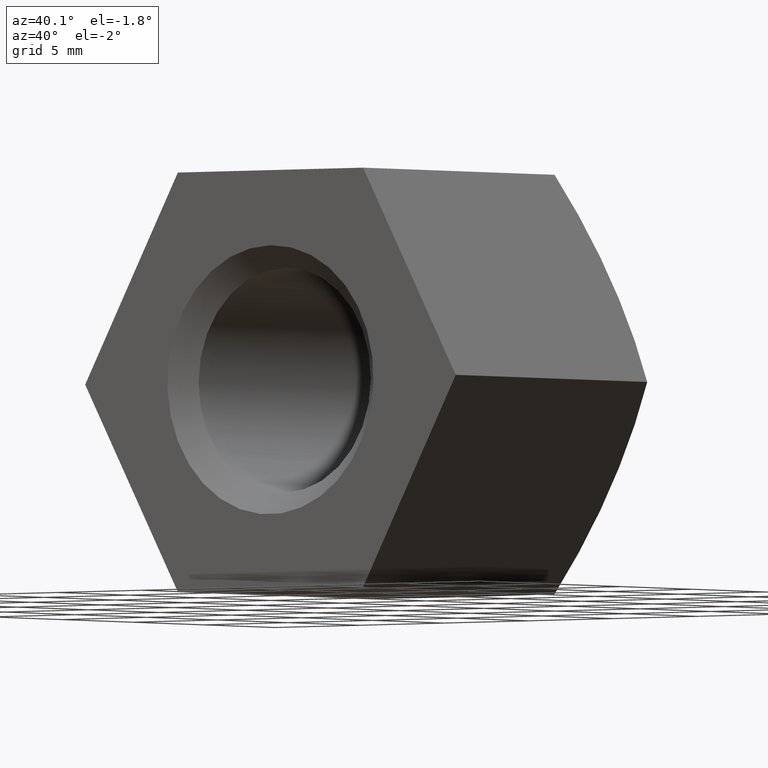
[diagram: clean part render]
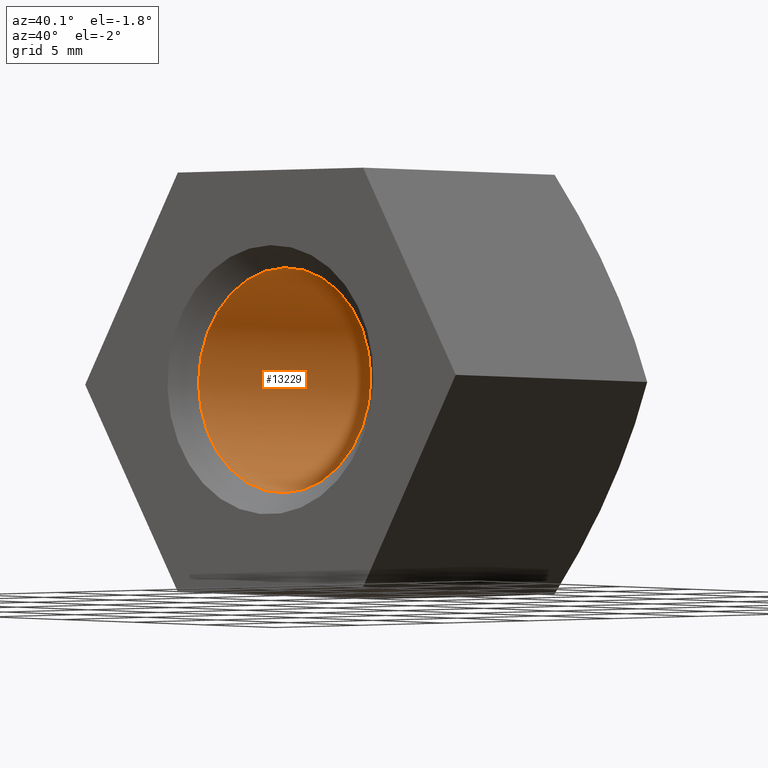
[diagram: same view with one face highlighted and labeled with its STEP entity id]
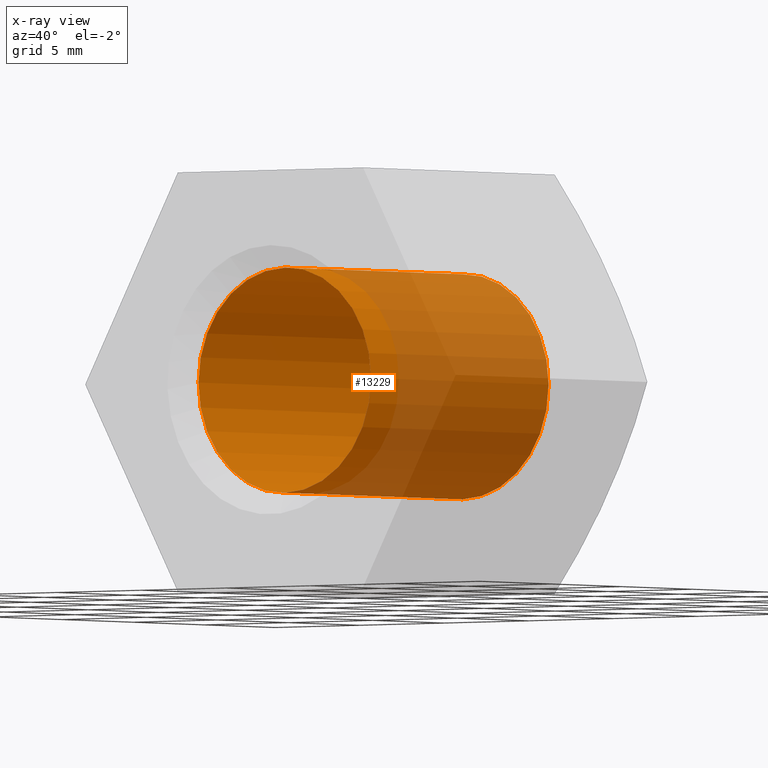
[diagram: x-ray of the same camera — body ghosted, the highlighted face saturated]
A machine part, auxiliary view. The second image highlights one B-rep face of the part: STEP entity #13229.
The next image is the same camera in x-ray: the body ghosted, the highlighted face saturated — about 48% of this face is hidden behind the body in this view.
In plain terms, the highlighted cylindrical surface (bore or boss wall) has radius 5.1 mm, axis along (-0, -1, -0).
Its self-contained STEP definition (entity closure, byte-faithful):
#112 = CIRCLE ( 'NONE', #10388, 5.099999999999996092 ) ;
#1081 = CARTESIAN_POINT ( 'NONE',  ( 0.000000000000000000, 13.49999999999999822, -5.099999999999994316 ) ) ;
#1345 = DIRECTION ( 'NONE',  ( 0.000000000000000000, -1.000000000000000000, 0.000000000000000000 ) ) ;
#1855 = ORIENTED_EDGE ( 'NONE', *, *, #4892, .T. ) ;
#1962 = VERTEX_POINT ( 'NONE', #1081 ) ;
#2155 = FACE_OUTER_BOUND ( 'NONE', #3071, .T. ) ;
#2358 = EDGE_LOOP ( 'NONE', ( #1855 ) ) ;
#2501 = CARTESIAN_POINT ( 'NONE',  ( 0.000000000000000000, 1.000000000000001776, 0.000000000000000000 ) ) ;
#2940 = DIRECTION ( 'NONE',  ( 0.000000000000000000, 0.000000000000000000, -1.000000000000000000 ) ) ;
#3071 = EDGE_LOOP ( 'NONE', ( #6240 ) ) ;
#4276 = CIRCLE ( 'NONE', #13575, 5.099999999999994316 ) ;
#4892 = EDGE_CURVE ( 'NONE', #10836, #10836, #112, .T. ) ;
#5744 = AXIS2_PLACEMENT_3D ( 'NONE', #8226, #12723, #13682 ) ;
#6195 = DIRECTION ( 'NONE',  ( -0.000000000000000000, -1.000000000000000000, -0.000000000000000000 ) ) ;
#6240 = ORIENTED_EDGE ( 'NONE', *, *, #11819, .F. ) ;
#7859 = CARTESIAN_POINT ( 'NONE',  ( 0.000000000000000000, 1.000000000000001776, 5.099999999999996092 ) ) ;
#8226 = CARTESIAN_POINT ( 'NONE',  ( 0.000000000000000000, 0.000000000000000000, 0.000000000000000000 ) ) ;
#10388 = AXIS2_PLACEMENT_3D ( 'NONE', #2501, #1345, #11425 ) ;
#10836 = VERTEX_POINT ( 'NONE', #7859 ) ;
#11425 = DIRECTION ( 'NONE',  ( 0.000000000000000000, 0.000000000000000000, 1.000000000000000000 ) ) ;
#11806 = CARTESIAN_POINT ( 'NONE',  ( 0.000000000000000000, 13.49999999999999822, 0.000000000000000000 ) ) ;
#11819 = EDGE_CURVE ( 'NONE', #1962, #1962, #4276, .T. ) ;
#12452 = FACE_OUTER_BOUND ( 'NONE', #2358, .T. ) ;
#12723 = DIRECTION ( 'NONE',  ( -0.000000000000000000, -1.000000000000000000, -0.000000000000000000 ) ) ;
#13229 = ADVANCED_FACE ( 'NONE', ( #12452, #2155 ), #13314, .F. ) ;
#13314 = CYLINDRICAL_SURFACE ( 'NONE', #5744, 5.099999999999996092 ) ;
#13575 = AXIS2_PLACEMENT_3D ( 'NONE', #11806, #6195, #2940 ) ;
#13682 = DIRECTION ( 'NONE',  ( 0.000000000000000000, 0.000000000000000000, -1.000000000000000000 ) ) ;